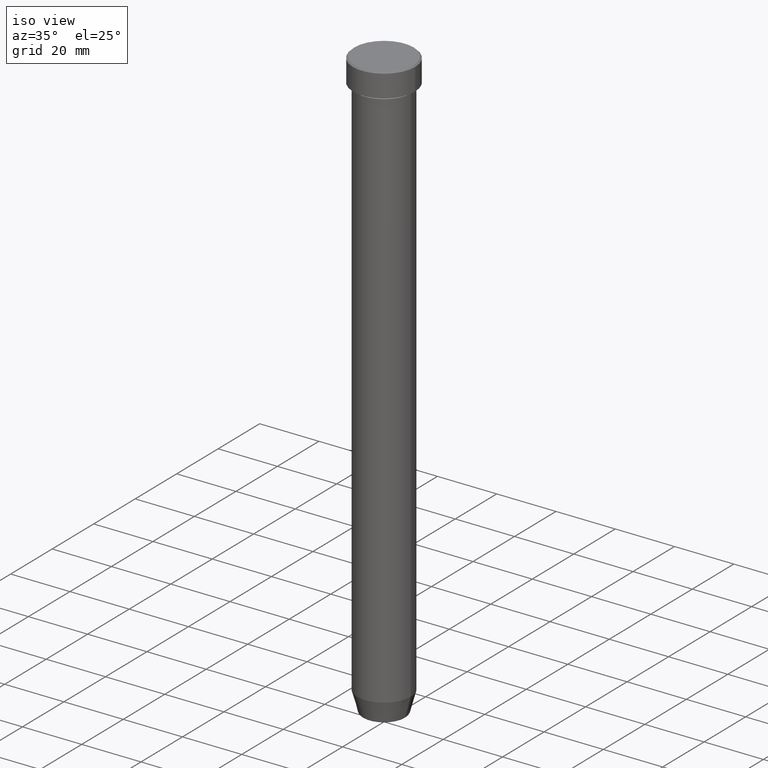
[diagram: clean part render]
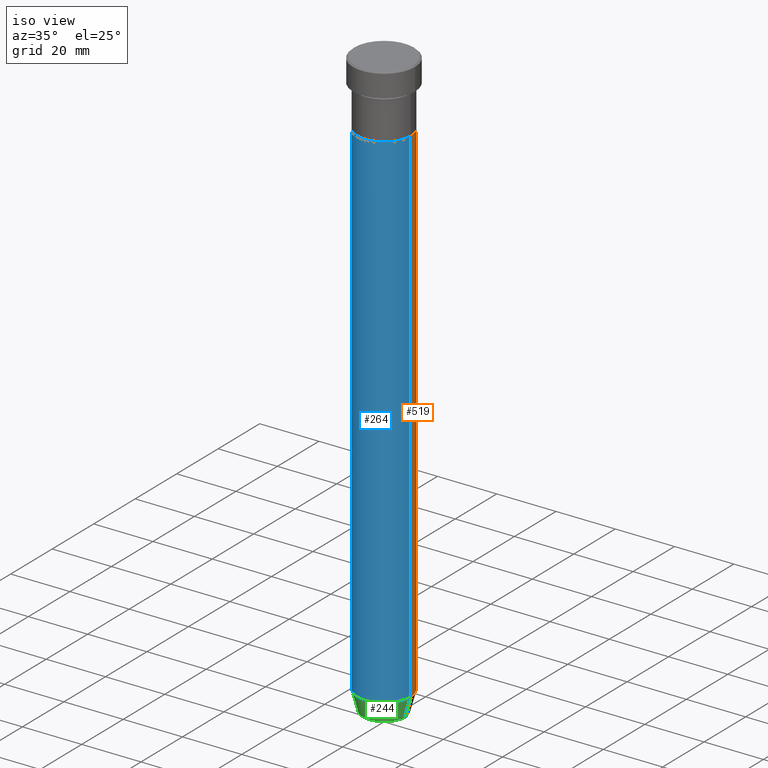
[diagram: same view with three faces highlighted in distinct colors, each labeled with its STEP entity id]
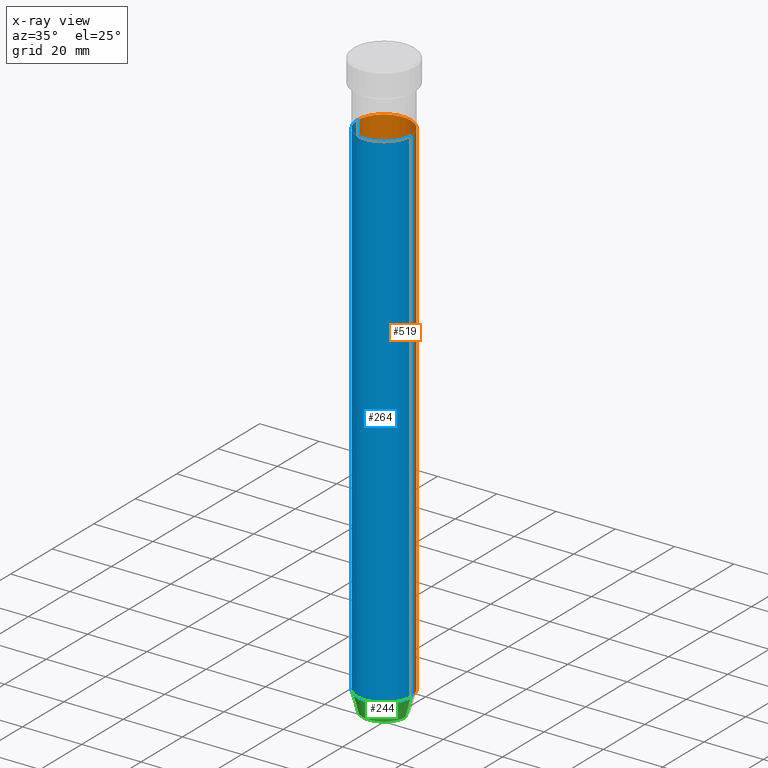
[diagram: x-ray of the same camera — body ghosted, the three highlighted faces saturated]
A machine part, iso view with three faces highlighted in distinct colors.
The next image is the same camera in x-ray (body ghosted, the three faces saturated) — at least one of them is partly hidden behind the body in this view.
Their STEP definitions:

[orange] entity #519 — the highlighted cylindrical surface (edge-blend (fillet) strip) has radius 9 mm, axis along (-0, -0, 1).
#20 = LINE ( 'NONE', #390, #434 ) ;
#21 = DIRECTION ( 'NONE',  ( 1.000000000000000000, 0.000000000000000000, 0.000000000000000000 ) ) ;
#22 = DIRECTION ( 'NONE',  ( 1.000000000000000000, 0.000000000000000000, 0.000000000000000000 ) ) ;
#26 = DIRECTION ( 'NONE',  ( -0.000000000000000000, -0.000000000000000000, 1.000000000000000000 ) ) ;
#51 = ORIENTED_EDGE ( 'NONE', *, *, #349, .F. ) ;
#53 = CARTESIAN_POINT ( 'NONE',  ( 0.000000000000000000, 0.000000000000000000, -192.9999999999999432 ) ) ;
#85 = CARTESIAN_POINT ( 'NONE',  ( 9.000000000000000000, 0.000000000000000000, -22.00000000000000000 ) ) ;
#114 = CARTESIAN_POINT ( 'NONE',  ( 0.000000000000000000, 0.000000000000000000, 0.000000000000000000 ) ) ;
#118 = EDGE_CURVE ( 'NONE', #520, #250, #309, .T. ) ;
#134 = CARTESIAN_POINT ( 'NONE',  ( -9.000000000000000000, 1.102182119232617714E-15, -22.00000000000000000 ) ) ;
#152 = CARTESIAN_POINT ( 'NONE',  ( -9.000000000000000000, 1.102182119232617714E-15, 0.000000000000000000 ) ) ;
#162 = CARTESIAN_POINT ( 'NONE',  ( 0.000000000000000000, 0.000000000000000000, -22.00000000000000000 ) ) ;
#225 = VERTEX_POINT ( 'NONE', #85 ) ;
#229 = CIRCLE ( 'NONE', #410, 9.000000000000000000 ) ;
#250 = VERTEX_POINT ( 'NONE', #570 ) ;
#257 = DIRECTION ( 'NONE',  ( -0.000000000000000000, -0.000000000000000000, 1.000000000000000000 ) ) ;
#265 = DIRECTION ( 'NONE',  ( -0.000000000000000000, -0.000000000000000000, 1.000000000000000000 ) ) ;
#268 = EDGE_CURVE ( 'NONE', #250, #594, #381, .T. ) ;
#272 = EDGE_LOOP ( 'NONE', ( #291, #517, #380, #51 ) ) ;
#291 = ORIENTED_EDGE ( 'NONE', *, *, #118, .T. ) ;
#304 = DIRECTION ( 'NONE',  ( -0.000000000000000000, -0.000000000000000000, 1.000000000000000000 ) ) ;
#305 = AXIS2_PLACEMENT_3D ( 'NONE', #114, #304, #389 ) ;
#309 = CIRCLE ( 'NONE', #397, 9.000000000000000000 ) ;
#314 = DIRECTION ( 'NONE',  ( -0.000000000000000000, -0.000000000000000000, 1.000000000000000000 ) ) ;
#328 = EDGE_CURVE ( 'NONE', #225, #594, #229, .T. ) ;
#349 = EDGE_CURVE ( 'NONE', #520, #225, #20, .T. ) ;
#380 = ORIENTED_EDGE ( 'NONE', *, *, #328, .F. ) ;
#381 = LINE ( 'NONE', #152, #446 ) ;
#389 = DIRECTION ( 'NONE',  ( 1.000000000000000000, 0.000000000000000000, 0.000000000000000000 ) ) ;
#390 = CARTESIAN_POINT ( 'NONE',  ( 9.000000000000000000, 0.000000000000000000, 0.000000000000000000 ) ) ;
#391 = CYLINDRICAL_SURFACE ( 'NONE', #305, 9.000000000000000000 ) ;
#397 = AXIS2_PLACEMENT_3D ( 'NONE', #53, #265, #21 ) ;
#410 = AXIS2_PLACEMENT_3D ( 'NONE', #162, #314, #22 ) ;
#434 = VECTOR ( 'NONE', #26, 1000.000000000000000 ) ;
#446 = VECTOR ( 'NONE', #257, 1000.000000000000000 ) ;
#482 = FACE_OUTER_BOUND ( 'NONE', #272, .T. ) ;
#517 = ORIENTED_EDGE ( 'NONE', *, *, #268, .T. ) ;
#519 = ADVANCED_FACE ( 'NONE', ( #482 ), #391, .T. ) ;
#520 = VERTEX_POINT ( 'NONE', #523 ) ;
#523 = CARTESIAN_POINT ( 'NONE',  ( 9.000000000000000000, 0.000000000000000000, -192.9999999999999432 ) ) ;
#570 = CARTESIAN_POINT ( 'NONE',  ( -9.000000000000000000, 1.102182119232617714E-15, -192.9999999999999432 ) ) ;
#594 = VERTEX_POINT ( 'NONE', #134 ) ;

[blue] entity #264 — the highlighted cylindrical surface (edge-blend (fillet) strip) has radius 9 mm, axis along (-0, -0, 1).
#5 = DIRECTION ( 'NONE',  ( -0.000000000000000000, -0.000000000000000000, 1.000000000000000000 ) ) ;
#11 = ORIENTED_EDGE ( 'NONE', *, *, #251, .T. ) ;
#20 = LINE ( 'NONE', #390, #434 ) ;
#26 = DIRECTION ( 'NONE',  ( -0.000000000000000000, -0.000000000000000000, 1.000000000000000000 ) ) ;
#85 = CARTESIAN_POINT ( 'NONE',  ( 9.000000000000000000, 0.000000000000000000, -22.00000000000000000 ) ) ;
#117 = CIRCLE ( 'NONE', #358, 9.000000000000000000 ) ;
#134 = CARTESIAN_POINT ( 'NONE',  ( -9.000000000000000000, 1.102182119232617714E-15, -22.00000000000000000 ) ) ;
#152 = CARTESIAN_POINT ( 'NONE',  ( -9.000000000000000000, 1.102182119232617714E-15, 0.000000000000000000 ) ) ;
#202 = DIRECTION ( 'NONE',  ( 1.000000000000000000, 0.000000000000000000, 0.000000000000000000 ) ) ;
#225 = VERTEX_POINT ( 'NONE', #85 ) ;
#243 = AXIS2_PLACEMENT_3D ( 'NONE', #341, #261, #532 ) ;
#250 = VERTEX_POINT ( 'NONE', #570 ) ;
#251 = EDGE_CURVE ( 'NONE', #250, #520, #117, .T. ) ;
#253 = AXIS2_PLACEMENT_3D ( 'NONE', #562, #521, #260 ) ;
#257 = DIRECTION ( 'NONE',  ( -0.000000000000000000, -0.000000000000000000, 1.000000000000000000 ) ) ;
#260 = DIRECTION ( 'NONE',  ( 1.000000000000000000, 0.000000000000000000, 0.000000000000000000 ) ) ;
#261 = DIRECTION ( 'NONE',  ( -0.000000000000000000, -0.000000000000000000, 1.000000000000000000 ) ) ;
#264 = ADVANCED_FACE ( 'NONE', ( #302 ), #569, .T. ) ;
#267 = ORIENTED_EDGE ( 'NONE', *, *, #268, .F. ) ;
#268 = EDGE_CURVE ( 'NONE', #250, #594, #381, .T. ) ;
#302 = FACE_OUTER_BOUND ( 'NONE', #467, .T. ) ;
#341 = CARTESIAN_POINT ( 'NONE',  ( 0.000000000000000000, 0.000000000000000000, -22.00000000000000000 ) ) ;
#349 = EDGE_CURVE ( 'NONE', #520, #225, #20, .T. ) ;
#358 = AXIS2_PLACEMENT_3D ( 'NONE', #525, #5, #202 ) ;
#381 = LINE ( 'NONE', #152, #446 ) ;
#387 = CIRCLE ( 'NONE', #243, 9.000000000000000000 ) ;
#390 = CARTESIAN_POINT ( 'NONE',  ( 9.000000000000000000, 0.000000000000000000, 0.000000000000000000 ) ) ;
#434 = VECTOR ( 'NONE', #26, 1000.000000000000000 ) ;
#446 = VECTOR ( 'NONE', #257, 1000.000000000000000 ) ;
#464 = ORIENTED_EDGE ( 'NONE', *, *, #489, .F. ) ;
#467 = EDGE_LOOP ( 'NONE', ( #267, #11, #528, #464 ) ) ;
#489 = EDGE_CURVE ( 'NONE', #594, #225, #387, .T. ) ;
#520 = VERTEX_POINT ( 'NONE', #523 ) ;
#521 = DIRECTION ( 'NONE',  ( -0.000000000000000000, -0.000000000000000000, 1.000000000000000000 ) ) ;
#523 = CARTESIAN_POINT ( 'NONE',  ( 9.000000000000000000, 0.000000000000000000, -192.9999999999999432 ) ) ;
#525 = CARTESIAN_POINT ( 'NONE',  ( 0.000000000000000000, 0.000000000000000000, -192.9999999999999432 ) ) ;
#528 = ORIENTED_EDGE ( 'NONE', *, *, #349, .T. ) ;
#532 = DIRECTION ( 'NONE',  ( 1.000000000000000000, 0.000000000000000000, 0.000000000000000000 ) ) ;
#562 = CARTESIAN_POINT ( 'NONE',  ( 0.000000000000000000, 0.000000000000000000, 0.000000000000000000 ) ) ;
#569 = CYLINDRICAL_SURFACE ( 'NONE', #253, 9.000000000000000000 ) ;
#570 = CARTESIAN_POINT ( 'NONE',  ( -9.000000000000000000, 1.102182119232617714E-15, -192.9999999999999432 ) ) ;
#594 = VERTEX_POINT ( 'NONE', #134 ) ;

[green] entity #244 — the highlighted conical surface has half-angle 15 deg.
#5 = DIRECTION ( 'NONE',  ( -0.000000000000000000, -0.000000000000000000, 1.000000000000000000 ) ) ;
#24 = EDGE_CURVE ( 'NONE', #147, #250, #282, .T. ) ;
#62 = CARTESIAN_POINT ( 'NONE',  ( 0.000000000000000000, 0.000000000000000000, -199.9999999999999716 ) ) ;
#80 = CONICAL_SURFACE ( 'NONE', #574, 7.124355652982127474, 0.2617993877991499629 ) ;
#91 = LINE ( 'NONE', #514, #582 ) ;
#99 = EDGE_LOOP ( 'NONE', ( #144, #224, #444, #506 ) ) ;
#110 = EDGE_CURVE ( 'NONE', #147, #324, #308, .T. ) ;
#111 = DIRECTION ( 'NONE',  ( -0.000000000000000000, -0.000000000000000000, 1.000000000000000000 ) ) ;
#117 = CIRCLE ( 'NONE', #358, 9.000000000000000000 ) ;
#144 = ORIENTED_EDGE ( 'NONE', *, *, #24, .F. ) ;
#147 = VERTEX_POINT ( 'NONE', #579 ) ;
#194 = CARTESIAN_POINT ( 'NONE',  ( -7.124355652982127474, 8.724819346411914255E-16, -199.9999999999999716 ) ) ;
#200 = DIRECTION ( 'NONE',  ( -0.000000000000000000, -0.000000000000000000, 1.000000000000000000 ) ) ;
#202 = DIRECTION ( 'NONE',  ( 1.000000000000000000, 0.000000000000000000, 0.000000000000000000 ) ) ;
#224 = ORIENTED_EDGE ( 'NONE', *, *, #110, .T. ) ;
#244 = ADVANCED_FACE ( 'NONE', ( #471 ), #80, .T. ) ;
#250 = VERTEX_POINT ( 'NONE', #570 ) ;
#251 = EDGE_CURVE ( 'NONE', #250, #520, #117, .T. ) ;
#275 = VECTOR ( 'NONE', #457, 1000.000000000000114 ) ;
#282 = LINE ( 'NONE', #194, #275 ) ;
#300 = CARTESIAN_POINT ( 'NONE',  ( 7.223655072137179722, 0.000000000000000000, -199.6294095225512706 ) ) ;
#308 = CIRCLE ( 'NONE', #340, 7.223655072137178834 ) ;
#324 = VERTEX_POINT ( 'NONE', #300 ) ;
#333 = DIRECTION ( 'NONE',  ( 1.000000000000000000, 0.000000000000000000, 0.000000000000000000 ) ) ;
#340 = AXIS2_PLACEMENT_3D ( 'NONE', #567, #200, #374 ) ;
#358 = AXIS2_PLACEMENT_3D ( 'NONE', #525, #5, #202 ) ;
#374 = DIRECTION ( 'NONE',  ( -1.000000000000000000, 0.000000000000000000, 0.000000000000000000 ) ) ;
#444 = ORIENTED_EDGE ( 'NONE', *, *, #456, .T. ) ;
#456 = EDGE_CURVE ( 'NONE', #324, #520, #91, .T. ) ;
#457 = DIRECTION ( 'NONE',  ( -0.2588190451025212391, 3.169619151431771721E-17, 0.9659258262890680902 ) ) ;
#461 = DIRECTION ( 'NONE',  ( 0.2588190451025212391, 0.000000000000000000, 0.9659258262890680902 ) ) ;
#471 = FACE_OUTER_BOUND ( 'NONE', #99, .T. ) ;
#506 = ORIENTED_EDGE ( 'NONE', *, *, #251, .F. ) ;
#514 = CARTESIAN_POINT ( 'NONE',  ( 7.124355652982127474, 0.000000000000000000, -199.9999999999999716 ) ) ;
#520 = VERTEX_POINT ( 'NONE', #523 ) ;
#523 = CARTESIAN_POINT ( 'NONE',  ( 9.000000000000000000, 0.000000000000000000, -192.9999999999999432 ) ) ;
#525 = CARTESIAN_POINT ( 'NONE',  ( 0.000000000000000000, 0.000000000000000000, -192.9999999999999432 ) ) ;
#567 = CARTESIAN_POINT ( 'NONE',  ( 0.000000000000000000, 0.000000000000000000, -199.6294095225512706 ) ) ;
#570 = CARTESIAN_POINT ( 'NONE',  ( -9.000000000000000000, 1.102182119232617714E-15, -192.9999999999999432 ) ) ;
#574 = AXIS2_PLACEMENT_3D ( 'NONE', #62, #111, #333 ) ;
#579 = CARTESIAN_POINT ( 'NONE',  ( -7.223655072137179722, 9.934123627281759193E-16, -199.6294095225512706 ) ) ;
#582 = VECTOR ( 'NONE', #461, 1000.000000000000114 ) ;